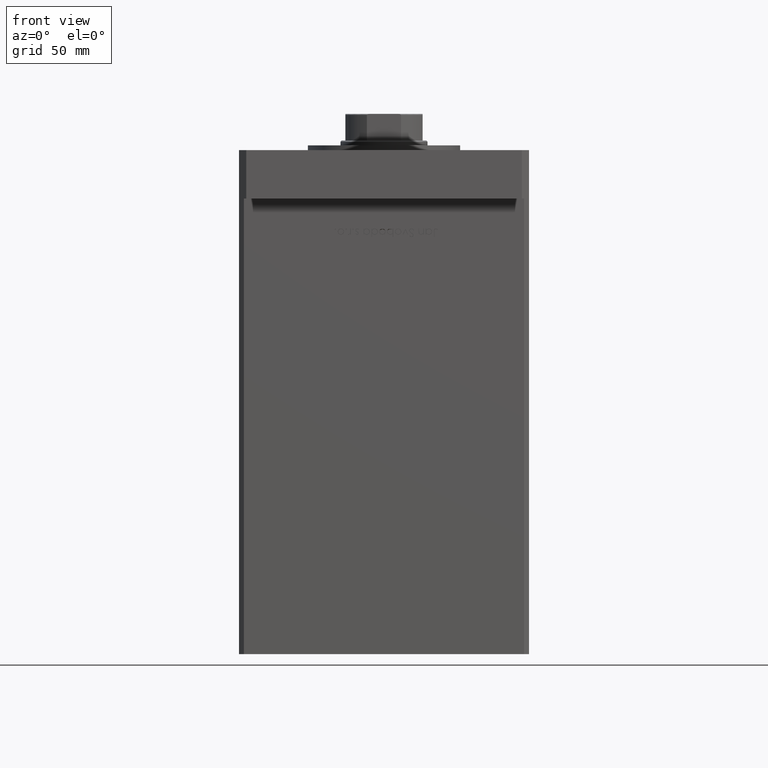
[diagram: clean part render]
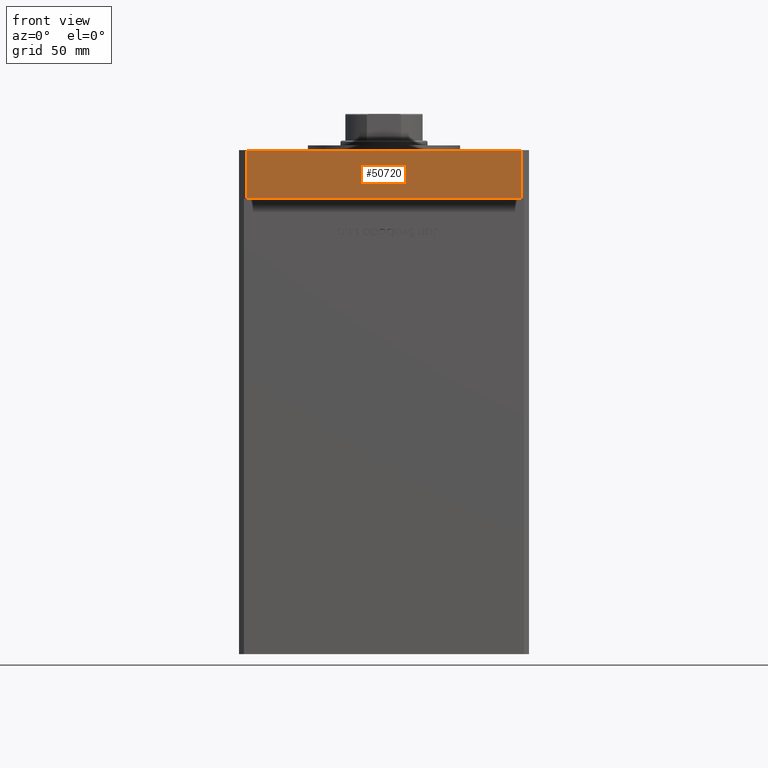
[diagram: same view with one face highlighted and labeled with its STEP entity id]
A machine part, front view. The second image highlights one B-rep face of the part: STEP entity #50720.
In plain terms, the highlighted planar face has unit normal (-0, 1, 0).
Its self-contained STEP definition (entity closure, byte-faithful):
#1566 = ORIENTED_EDGE ( 'NONE', *, *, #3117, .F. ) ;
#2897 = VECTOR ( 'NONE', #24441, 1000.000000000000000 ) ;
#3015 = VECTOR ( 'NONE', #30427, 1000.000000000000000 ) ;
#3117 = EDGE_CURVE ( 'NONE', #51757, #23162, #22069, .T. ) ;
#3413 = ORIENTED_EDGE ( 'NONE', *, *, #44881, .T. ) ;
#3778 = CARTESIAN_POINT ( 'NONE',  ( -56.99999999999999289, -82.50000000000001421, 20.00000000000000000 ) ) ;
#4264 = EDGE_CURVE ( 'NONE', #23162, #16533, #51654, .T. ) ;
#5634 = DIRECTION ( 'NONE',  ( -0.000000000000000000, -0.000000000000000000, -1.000000000000000000 ) ) ;
#6842 = FACE_OUTER_BOUND ( 'NONE', #40858, .T. ) ;
#7317 = ORIENTED_EDGE ( 'NONE', *, *, #4264, .F. ) ;
#10940 = CARTESIAN_POINT ( 'NONE',  ( -56.99999999999999289, -82.50000000000001421, 20.00000000000000000 ) ) ;
#14256 = VERTEX_POINT ( 'NONE', #27392 ) ;
#15842 = DIRECTION ( 'NONE',  ( -9.738798461624180871E-16, 1.000000000000000000, 0.000000000000000000 ) ) ;
#16533 = VERTEX_POINT ( 'NONE', #22885 ) ;
#19665 = PLANE ( 'NONE',  #29165 ) ;
#19822 = VECTOR ( 'NONE', #35653, 1000.000000000000000 ) ;
#22069 = LINE ( 'NONE', #31018, #19822 ) ;
#22546 = CARTESIAN_POINT ( 'NONE',  ( 57.00000000000000711, -82.49999999999990052, 20.00000000000000000 ) ) ;
#22885 = CARTESIAN_POINT ( 'NONE',  ( 57.00000000000000711, -82.49999999999990052, 0.000000000000000000 ) ) ;
#23162 = VERTEX_POINT ( 'NONE', #37755 ) ;
#23361 = LINE ( 'NONE', #35047, #3015 ) ;
#24441 = DIRECTION ( 'NONE',  ( 1.000000000000000000, 9.738798461624180871E-16, 0.000000000000000000 ) ) ;
#27392 = CARTESIAN_POINT ( 'NONE',  ( -56.99999999999999289, -82.50000000000001421, 0.000000000000000000 ) ) ;
#28506 = LINE ( 'NONE', #41033, #2897 ) ;
#29165 = AXIS2_PLACEMENT_3D ( 'NONE', #10940, #15842, #52323 ) ;
#30427 = DIRECTION ( 'NONE',  ( -0.000000000000000000, -0.000000000000000000, -1.000000000000000000 ) ) ;
#30566 = ORIENTED_EDGE ( 'NONE', *, *, #40795, .T. ) ;
#31018 = CARTESIAN_POINT ( 'NONE',  ( -56.99999999999999289, -82.50000000000001421, 20.00000000000000000 ) ) ;
#35047 = CARTESIAN_POINT ( 'NONE',  ( -56.99999999999999289, -82.50000000000001421, 20.00000000000000000 ) ) ;
#35653 = DIRECTION ( 'NONE',  ( 1.000000000000000000, 9.738798461624180871E-16, 0.000000000000000000 ) ) ;
#37755 = CARTESIAN_POINT ( 'NONE',  ( 57.00000000000000711, -82.49999999999990052, 20.00000000000000000 ) ) ;
#40795 = EDGE_CURVE ( 'NONE', #14256, #16533, #28506, .T. ) ;
#40858 = EDGE_LOOP ( 'NONE', ( #30566, #7317, #1566, #3413 ) ) ;
#41033 = CARTESIAN_POINT ( 'NONE',  ( -56.99999999999999289, -82.50000000000001421, 0.000000000000000000 ) ) ;
#41572 = VECTOR ( 'NONE', #5634, 1000.000000000000000 ) ;
#44881 = EDGE_CURVE ( 'NONE', #51757, #14256, #23361, .T. ) ;
#50720 = ADVANCED_FACE ( 'NONE', ( #6842 ), #19665, .F. ) ;
#51654 = LINE ( 'NONE', #22546, #41572 ) ;
#51757 = VERTEX_POINT ( 'NONE', #3778 ) ;
#52323 = DIRECTION ( 'NONE',  ( -1.000000000000000000, -9.738798461624180871E-16, 0.000000000000000000 ) ) ;